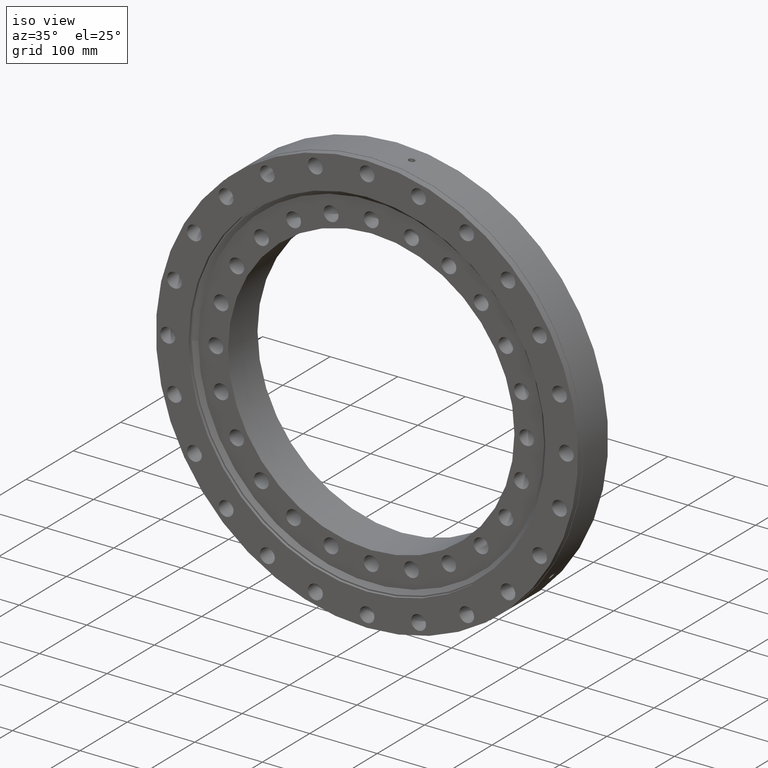
[diagram: clean part render]
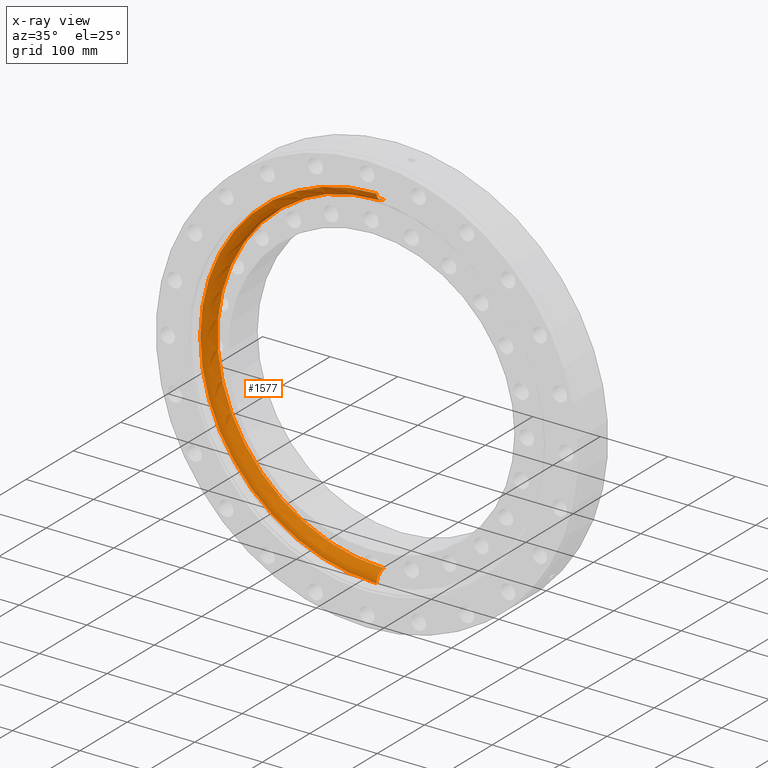
[diagram: x-ray — body ghosted, one internal face saturated and labeled with its STEP entity id]
A machine part, iso view, then the same camera in x-ray: the body is ghosted and one INTERNAL B-rep face — a face not visible from any outside direction — is saturated and labeled: STEP entity #1577.
In plain terms, the highlighted toroidal blend (fillet) surface has major radius 262.5 mm and minor (blend) radius 15.875 mm.
Its self-contained STEP definition (entity closure, byte-faithful):
#16 = EDGE_CURVE ( 'NONE', #4103, #1573, #4175, .T. ) ;
#153 = VERTEX_POINT ( 'NONE', #2994 ) ;
#172 = ORIENTED_EDGE ( 'NONE', *, *, #2497, .T. ) ;
#343 = AXIS2_PLACEMENT_3D ( 'NONE', #2894, #2903, #4355 ) ;
#384 = AXIS2_PLACEMENT_3D ( 'NONE', #1737, #950, #1753 ) ;
#716 = ORIENTED_EDGE ( 'NONE', *, *, #1880, .T. ) ;
#769 = ORIENTED_EDGE ( 'NONE', *, *, #16, .F. ) ;
#814 = ORIENTED_EDGE ( 'NONE', *, *, #2698, .F. ) ;
#835 = AXIS2_PLACEMENT_3D ( 'NONE', #2221, #1592, #3303 ) ;
#898 = FACE_OUTER_BOUND ( 'NONE', #5574, .T. ) ;
#950 = DIRECTION ( 'NONE',  ( 1.000000000000000000, 3.339690896028429500E-033, 1.224646799147353200E-016 ) ) ;
#1047 = TOROIDAL_SURFACE ( 'NONE', #2237, 262.5000000000000000, 15.87500000000000000 ) ;
#1548 = CARTESIAN_POINT ( 'NONE',  ( 0.0000000000000000000, -8.883020697553652000E-015, 246.6250000000000000 ) ) ;
#1573 = VERTEX_POINT ( 'NONE', #2557 ) ;
#1577 = ADVANCED_FACE ( 'NONE', ( #898 ), #1047, .F. ) ;
#1592 = DIRECTION ( 'NONE',  ( -0.0000000000000000000, 1.000000000000000000, -2.727064569436389700E-017 ) ) ;
#1733 = CARTESIAN_POINT ( 'NONE',  ( 0.0000000000000000000, 2.196505908632955200E-016, 262.5000000000000000 ) ) ;
#1737 = CARTESIAN_POINT ( 'NONE',  ( 3.214697847761802700E-014, -1.409743839867775400E-014, -262.5000000000000000 ) ) ;
#1753 = DIRECTION ( 'NONE',  ( 1.224646799147351200E-016, 0.0000000000000000000, -1.000000000000000000 ) ) ;
#1806 = DIRECTION ( 'NONE',  ( -1.000000000000000000, 0.0000000000000000000, 0.0000000000000000000 ) ) ;
#1880 = EDGE_CURVE ( 'NONE', #2600, #1573, #4838, .T. ) ;
#2166 = CARTESIAN_POINT ( 'NONE',  ( 3.195256579825337800E-014, -15.79542556406760000, -260.9124999999999700 ) ) ;
#2221 = CARTESIAN_POINT ( 'NONE',  ( 0.0000000000000000000, -15.79542556406759200, -4.154323094305261000E-016 ) ) ;
#2237 = AXIS2_PLACEMENT_3D ( 'NONE', #2357, #4757, #2516 ) ;
#2357 = CARTESIAN_POINT ( 'NONE',  ( 0.0000000000000000000, -6.938893903907228400E-015, 0.0000000000000000000 ) ) ;
#2497 = EDGE_CURVE ( 'NONE', #153, #2600, #4894, .T. ) ;
#2516 = DIRECTION ( 'NONE',  ( 0.0000000000000000000, 2.727064569436389400E-017, 1.000000000000000000 ) ) ;
#2557 = CARTESIAN_POINT ( 'NONE',  ( 0.0000000000000000000, -15.79542556406758500, 260.9124999999999700 ) ) ;
#2600 = VERTEX_POINT ( 'NONE', #2166 ) ;
#2698 = EDGE_CURVE ( 'NONE', #153, #4103, #4289, .T. ) ;
#2894 = CARTESIAN_POINT ( 'NONE',  ( 0.0000000000000000000, -8.883020697553652000E-015, 5.301759297445131200E-032 ) ) ;
#2903 = DIRECTION ( 'NONE',  ( -0.0000000000000000000, 1.000000000000000000, -2.727064569436389700E-017 ) ) ;
#2994 = CARTESIAN_POINT ( 'NONE',  ( 3.020285168397160300E-014, -8.883020697553652000E-015, -246.6250000000000000 ) ) ;
#3303 = DIRECTION ( 'NONE',  ( 0.0000000000000000000, 2.659471625126136000E-017, 1.000000000000000000 ) ) ;
#3554 = AXIS2_PLACEMENT_3D ( 'NONE', #1733, #1806, #3607 ) ;
#3607 = DIRECTION ( 'NONE',  ( 0.0000000000000000000, 0.0000000000000000000, 1.000000000000000000 ) ) ;
#4103 = VERTEX_POINT ( 'NONE', #1548 ) ;
#4175 = CIRCLE ( 'NONE', #3554, 15.87500000000002800 ) ;
#4289 = CIRCLE ( 'NONE', #343, 246.6250000000000000 ) ;
#4355 = DIRECTION ( 'NONE',  ( 0.0000000000000000000, 2.727064569436389700E-017, 1.000000000000000000 ) ) ;
#4757 = DIRECTION ( 'NONE',  ( -0.0000000000000000000, 1.000000000000000000, -2.727064569436389700E-017 ) ) ;
#4838 = CIRCLE ( 'NONE', #835, 260.9124999999999700 ) ;
#4894 = CIRCLE ( 'NONE', #384, 15.87500000000002800 ) ;
#5574 = EDGE_LOOP ( 'NONE', ( #814, #172, #716, #769 ) ) ;